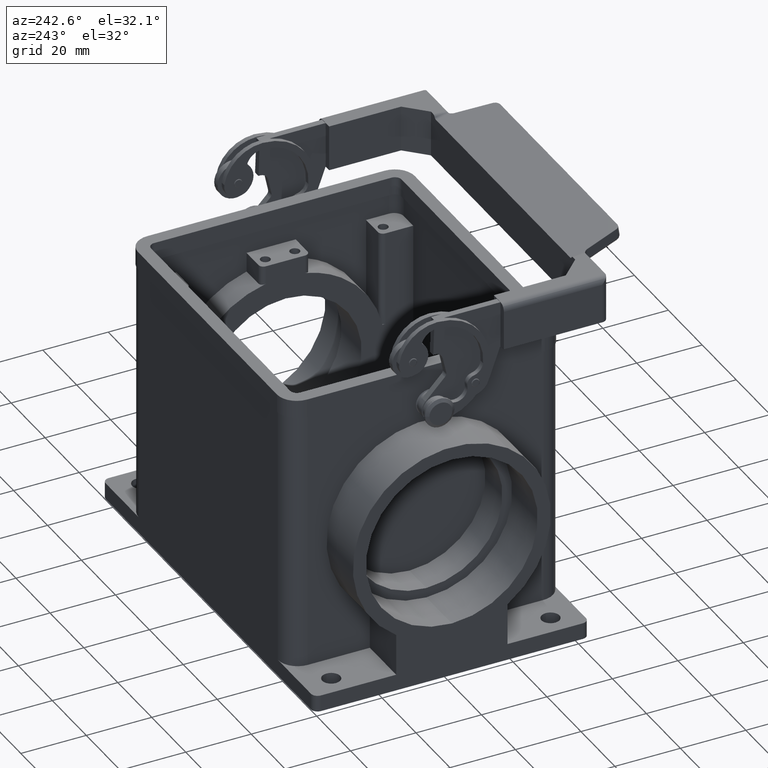
[diagram: clean part render]
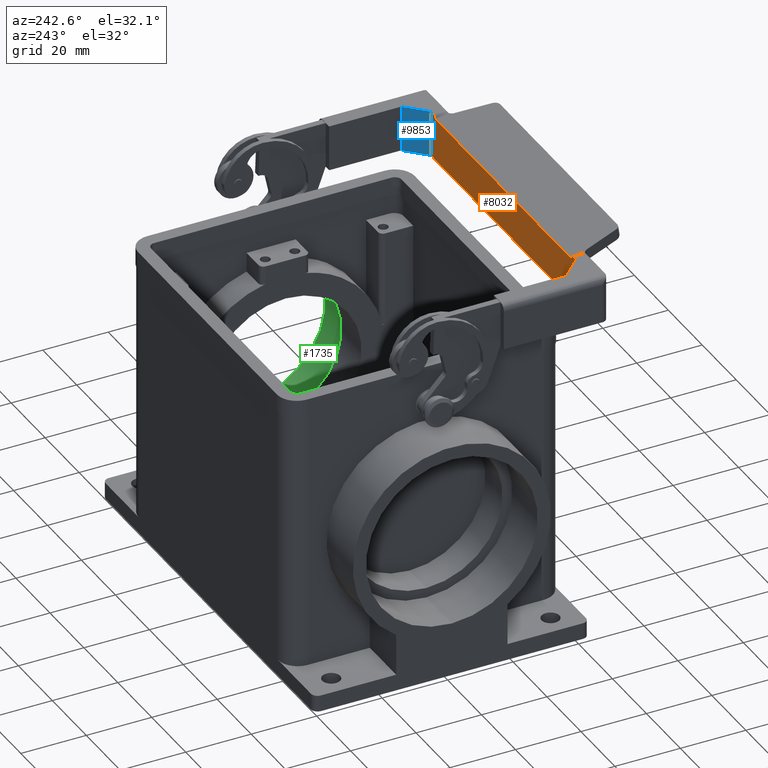
[diagram: same view with three faces highlighted in distinct colors, each labeled with its STEP entity id]
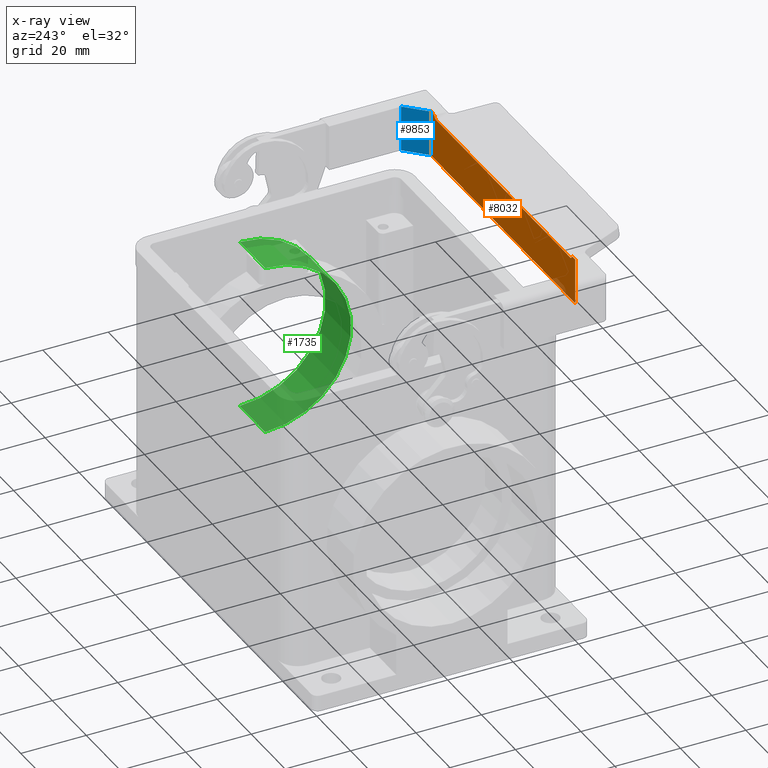
[diagram: x-ray of the same camera — body ghosted, the three highlighted faces saturated]
A machine part, auxiliary view with three faces highlighted in distinct colors.
The next image is the same camera in x-ray (body ghosted, the three faces saturated) — at least one of them is partly hidden behind the body in this view.
Their STEP definitions:

[orange] entity #8032 — the highlighted face is a freeform B-spline surface patch.
#7191=CARTESIAN_POINT('',(40.361560227985684,-48.050000000000011,52.499939828503017));
#7192=VERTEX_POINT('',#7191);
#7210=CARTESIAN_POINT('',(39.500115408826900,-48.050000003168250,52.000000000558650));
#7211=VERTEX_POINT('',#7210);
#7212=CARTESIAN_POINT('',(40.361560227985684,-48.050000000000011,52.499939828503017));
#7213=CARTESIAN_POINT('',(40.314407092082220,-48.050000000000011,52.418679517038271));
#7214=CARTESIAN_POINT('',(40.256156698689821,-48.049999999997155,52.344163093225035));
#7215=CARTESIAN_POINT('',(40.093467195348580,-48.049999999997155,52.187420787721017));
#7216=CARTESIAN_POINT('',(39.981739528251182,-48.049999999999272,52.115617820340880));
#7217=CARTESIAN_POINT('',(39.744715238836235,-48.049999999999272,52.022999224128156));
#7218=CARTESIAN_POINT('',(39.623003539887996,-48.050000000000004,52.0));
#7219=CARTESIAN_POINT('',(39.500115408843875,-48.050000000000004,52.0));
#7220=B_SPLINE_CURVE_WITH_KNOTS('',3,(#7212,#7213,#7214,#7215,#7216,#7217,#7218,#7219),.UNSPECIFIED.,.F.,.U.,(4,2,2,4),(0.052602964427469,0.080903267851623,0.120399781356389,0.157290182655820),.UNSPECIFIED.);
#7221=EDGE_CURVE('',#7211,#7192,#7220,.F.);
#7333=CARTESIAN_POINT('',(41.232172577320149,-48.049999999999997,53.000000000000007));
#7334=VERTEX_POINT('',#7333);
#7352=CARTESIAN_POINT('',(41.232172577320149,-48.050000000000004,53.000000000000007));
#7353=CARTESIAN_POINT('',(41.101124847243476,-48.050000000000004,53.000000000000007));
#7354=CARTESIAN_POINT('',(40.971285304000212,-48.049999999999919,52.974510148811845));
#7355=CARTESIAN_POINT('',(40.747813539045509,-48.049999999999919,52.883134780876055));
#7356=CARTESIAN_POINT('',(40.653180753621825,-48.049999999999990,52.824854547167703));
#7357=CARTESIAN_POINT('',(40.487113480392821,-48.049999999999990,52.680204351838931));
#7358=CARTESIAN_POINT('',(40.416690092124156,-48.050000000000004,52.594946657742810));
#7359=CARTESIAN_POINT('',(40.361560227985677,-48.050000000000004,52.499939828503003));
#7360=B_SPLINE_CURVE_WITH_KNOTS('',3,(#7352,#7353,#7354,#7355,#7356,#7357,#7358,#7359),.UNSPECIFIED.,.F.,.U.,(4,2,2,4),(0.0,0.039314319023001,0.072431729905374,0.105388989060189),.UNSPECIFIED.);
#7361=EDGE_CURVE('',#7334,#7192,#7360,.T.);
#7398=CARTESIAN_POINT('',(42.500000000000000,-48.050000000000004,53.000000000000007));
#7399=VERTEX_POINT('',#7398);
#7406=CARTESIAN_POINT('',(42.500000000000000,-48.050000000000004,53.000000000000007));
#7407=DIRECTION('',(-1.0,0.0,0.0));
#7408=VECTOR('',#7407,1.267827422679851);
#7409=LINE('',#7406,#7408);
#7410=EDGE_CURVE('',#7399,#7334,#7409,.T.);
#7920=CARTESIAN_POINT('',(-40.361560227985684,-48.050000000000011,52.499939828503017));
#7921=VERTEX_POINT('',#7920);
#7939=CARTESIAN_POINT('',(-41.232172577320142,-48.050000000000026,53.000000000000007));
#7940=VERTEX_POINT('',#7939);
#7941=CARTESIAN_POINT('',(-40.361560227985677,-48.050000000000026,52.499939828503017));
#7942=CARTESIAN_POINT('',(-40.426951723056924,-48.050000000000026,52.612630811930146));
#7943=CARTESIAN_POINT('',(-40.513759861060976,-48.050000000000011,52.711435190928704));
#7944=CARTESIAN_POINT('',(-40.704277801393772,-48.050000000000011,52.858071887795369));
#7945=CARTESIAN_POINT('',(-40.801997983177614,-48.050000000000011,52.910439093288851));
#7946=CARTESIAN_POINT('',(-41.011162370497345,-48.050000000000011,52.981755231119976));
#7947=CARTESIAN_POINT('',(-41.121302325008536,-48.049999999999997,53.0));
#7948=CARTESIAN_POINT('',(-41.232172577320149,-48.049999999999997,53.0));
#7949=B_SPLINE_CURVE_WITH_KNOTS('',3,(#7941,#7942,#7943,#7944,#7945,#7946,#7947,#7948),.UNSPECIFIED.,.F.,.U.,(4,2,2,4),(0.0,0.039086794235502,0.072118588781698,0.105374956727841),.UNSPECIFIED.);
#7950=EDGE_CURVE('',#7921,#7940,#7949,.T.);
#7972=CARTESIAN_POINT('',(-42.499999999999993,-48.050000000000004,39.0));
#7973=CARTESIAN_POINT('',(-42.499999999999993,-48.050000000000004,53.000000387195335));
#7974=CARTESIAN_POINT('',(42.500000000000007,-48.050000000000004,39.0));
#7975=CARTESIAN_POINT('',(42.500000000000007,-48.050000000000004,53.000000387195342));
#7976=B_SPLINE_SURFACE_WITH_KNOTS('',1,1,((#7972,#7974),(#7973,#7975)),.UNSPECIFIED.,.F.,.F.,.U.,(2,2),(2,2),(0.0,14.000000387195335),(0.0,85.0),.UNSPECIFIED.);
#7977=ORIENTED_EDGE('',*,*,#7950,.F.);
#7978=CARTESIAN_POINT('',(-39.500115408824747,-48.050000003569799,52.000000000629441));
#7979=VERTEX_POINT('',#7978);
#7980=CARTESIAN_POINT('',(-39.500115408843875,-48.049999999999997,51.999999999999993));
#7981=CARTESIAN_POINT('',(-39.628297697831698,-48.049999999999997,51.999999999999993));
#7982=CARTESIAN_POINT('',(-39.755144809877883,-48.050000000000011,52.025023145515732));
#7983=CARTESIAN_POINT('',(-39.992863264927742,-48.050000000000011,52.122292077363454));
#7984=CARTESIAN_POINT('',(-40.101257557667779,-48.050000000000246,52.193710430774161));
#7985=CARTESIAN_POINT('',(-40.259054849162140,-48.050000000000246,52.347882602553270));
#7986=CARTESIAN_POINT('',(-40.315583885228996,-48.050000000000011,52.420707517420524));
#7987=CARTESIAN_POINT('',(-40.361560227985684,-48.050000000000011,52.499939828503017));
#7988=B_SPLINE_CURVE_WITH_KNOTS('',3,(#7980,#7981,#7982,#7983,#7984,#7985,#7986,#7987),.UNSPECIFIED.,.F.,.U.,(4,2,2,4),(0.0,0.038454686696347,0.077047642081161,0.104617594183743),.UNSPECIFIED.);
#7989=EDGE_CURVE('',#7979,#7921,#7988,.T.);
#7990=ORIENTED_EDGE('',*,*,#7989,.F.);
#7991=CARTESIAN_POINT('',(39.500115408826900,-48.050000003168250,52.000000000558650));
#7992=DIRECTION('',(-1.0,-5.082884E-012,8.960907E-013));
#7993=VECTOR('',#7992,79.000230817651641);
#7994=LINE('',#7991,#7993);
#7995=EDGE_CURVE('',#7211,#7979,#7994,.T.);
#7996=ORIENTED_EDGE('',*,*,#7995,.F.);
#7997=ORIENTED_EDGE('',*,*,#7221,.T.);
#7998=ORIENTED_EDGE('',*,*,#7361,.F.);
#7999=ORIENTED_EDGE('',*,*,#7410,.F.);
#8000=CARTESIAN_POINT('',(42.500000000000000,-48.050000000000004,39.0));
#8001=VERTEX_POINT('',#8000);
#8002=CARTESIAN_POINT('',(42.500000000000000,-48.050000000000004,39.0));
#8003=DIRECTION('',(0.0,0.0,1.0));
#8004=VECTOR('',#8003,14.000000000000007);
#8005=LINE('',#8002,#8004);
#8006=EDGE_CURVE('',#8001,#7399,#8005,.T.);
#8007=ORIENTED_EDGE('',*,*,#8006,.F.);
#8008=CARTESIAN_POINT('',(-42.500000000000000,-48.050000000000004,39.0));
#8009=VERTEX_POINT('',#8008);
#8010=CARTESIAN_POINT('',(42.500000000000000,-48.050000000000004,39.0));
#8011=DIRECTION('',(-1.0,0.0,0.0));
#8012=VECTOR('',#8011,85.0);
#8013=LINE('',#8010,#8012);
#8014=EDGE_CURVE('',#8001,#8009,#8013,.T.);
#8015=ORIENTED_EDGE('',*,*,#8014,.T.);
#8016=CARTESIAN_POINT('',(-42.500000000000000,-48.050000000000004,53.000000000000007));
#8017=VERTEX_POINT('',#8016);
#8018=CARTESIAN_POINT('',(-42.500000000000000,-48.050000000000004,39.0));
#8019=DIRECTION('',(0.0,0.0,1.0));
#8020=VECTOR('',#8019,14.000000000000007);
#8021=LINE('',#8018,#8020);
#8022=EDGE_CURVE('',#8009,#8017,#8021,.T.);
#8023=ORIENTED_EDGE('',*,*,#8022,.T.);
#8024=CARTESIAN_POINT('',(-42.500000000000000,-48.050000000000004,53.000000000000007));
#8025=DIRECTION('',(1.0,0.0,0.0));
#8026=VECTOR('',#8025,1.267827422679858);
#8027=LINE('',#8024,#8026);
#8028=EDGE_CURVE('',#8017,#7940,#8027,.T.);
#8029=ORIENTED_EDGE('',*,*,#8028,.T.);
#8030=EDGE_LOOP('',(#7977,#7990,#7996,#7997,#7998,#7999,#8007,#8015,#8023,#8029));
#8031=FACE_OUTER_BOUND('',#8030,.T.);
#8032=ADVANCED_FACE('',(#8031),#7976,.T.);

[blue] entity #9853 — the highlighted face is a freeform B-spline surface patch.
#7390=CARTESIAN_POINT('',(48.500000000000014,-42.049999999999997,53.000000000000007));
#7391=VERTEX_POINT('',#7390);
#7398=CARTESIAN_POINT('',(42.500000000000000,-48.050000000000004,53.000000000000007));
#7399=VERTEX_POINT('',#7398);
#7400=CARTESIAN_POINT('',(48.500000000000014,-42.049999999999997,53.000000000000007));
#7401=DIRECTION('',(-0.707106781186548,-0.707106781186547,0.0));
#7402=VECTOR('',#7401,8.485281374238586);
#7403=LINE('',#7400,#7402);
#7404=EDGE_CURVE('',#7391,#7399,#7403,.T.);
#8000=CARTESIAN_POINT('',(42.500000000000000,-48.050000000000004,39.0));
#8001=VERTEX_POINT('',#8000);
#8002=CARTESIAN_POINT('',(42.500000000000000,-48.050000000000004,39.0));
#8003=DIRECTION('',(0.0,0.0,1.0));
#8004=VECTOR('',#8003,14.000000000000007);
#8005=LINE('',#8002,#8004);
#8006=EDGE_CURVE('',#8001,#7399,#8005,.T.);
#9812=CARTESIAN_POINT('',(48.500000000000014,-42.049999999999997,39.0));
#9813=VERTEX_POINT('',#9812);
#9814=CARTESIAN_POINT('',(42.500000000000000,-48.050000000000004,39.0));
#9815=DIRECTION('',(0.707106781186548,0.707106781186547,0.0));
#9816=VECTOR('',#9815,8.485281374238586);
#9817=LINE('',#9814,#9816);
#9818=EDGE_CURVE('',#8001,#9813,#9817,.T.);
#9837=CARTESIAN_POINT('',(48.500000000000014,-42.049999999999997,53.000000000000007));
#9838=CARTESIAN_POINT('',(48.500000000000014,-42.049999999999997,39.0));
#9839=CARTESIAN_POINT('',(42.500000000000000,-48.050000000000004,53.000000000000007));
#9840=CARTESIAN_POINT('',(42.500000000000000,-48.049999999999997,38.999999999999993));
#9841=B_SPLINE_SURFACE_WITH_KNOTS('',1,1,((#9837,#9839),(#9838,#9840)),.UNSPECIFIED.,.F.,.F.,.U.,(2,2),(2,2),(0.0,14.000000000000007),(0.0,8.485281374238586),.UNSPECIFIED.);
#9842=ORIENTED_EDGE('',*,*,#9818,.F.);
#9843=ORIENTED_EDGE('',*,*,#8006,.T.);
#9844=ORIENTED_EDGE('',*,*,#7404,.F.);
#9845=CARTESIAN_POINT('',(48.500000000000014,-42.049999999999997,39.0));
#9846=DIRECTION('',(0.0,0.0,1.0));
#9847=VECTOR('',#9846,14.000000000000007);
#9848=LINE('',#9845,#9847);
#9849=EDGE_CURVE('',#9813,#7391,#9848,.T.);
#9850=ORIENTED_EDGE('',*,*,#9849,.F.);
#9851=EDGE_LOOP('',(#9842,#9843,#9844,#9850));
#9852=FACE_OUTER_BOUND('',#9851,.T.);
#9853=ADVANCED_FACE('',(#9852),#9841,.T.);

[green] entity #1735 — the highlighted cylindrical surface (partial cylindrical patch) has radius 26.24 mm, axis along (1, 0, 0).
#1694=CARTESIAN_POINT('',(55.0,0.0,-12.259999999999994));
#1695=DIRECTION('',(1.0,0.0,0.0));
#1696=DIRECTION('',(1.553563E-013,0.0,1.0));
#1697=AXIS2_PLACEMENT_3D('',#1694,#1695,#1696);
#1698=CYLINDRICAL_SURFACE('',#1697,26.240000000000006);
#1699=CARTESIAN_POINT('',(62.500000000000000,0.0,13.980000000000008));
#1700=VERTEX_POINT('',#1699);
#1701=CARTESIAN_POINT('',(47.500000000000000,0.0,13.980000000000011));
#1702=VERTEX_POINT('',#1701);
#1703=CARTESIAN_POINT('',(62.500000000000000,0.0,13.980000000000008));
#1704=DIRECTION('',(-1.0,0.0,0.0));
#1705=VECTOR('',#1704,15.0);
#1706=LINE('',#1703,#1705);
#1707=EDGE_CURVE('',#1700,#1702,#1706,.T.);
#1708=ORIENTED_EDGE('',*,*,#1707,.F.);
#1709=CARTESIAN_POINT('',(62.499999999999986,-3.213367E-015,-38.500000000000000));
#1710=VERTEX_POINT('',#1709);
#1711=CARTESIAN_POINT('',(62.499999999999986,0.0,-12.259999999999994));
#1712=DIRECTION('',(-1.0,0.0,1.553563E-013));
#1713=DIRECTION('',(1.553563E-013,0.0,1.0));
#1714=AXIS2_PLACEMENT_3D('',#1711,#1712,#1713);
#1715=CIRCLE('',#1714,26.240000000000006);
#1716=EDGE_CURVE('',#1710,#1700,#1715,.T.);
#1717=ORIENTED_EDGE('',*,*,#1716,.F.);
#1718=CARTESIAN_POINT('',(47.500000000000000,-3.213367E-015,-38.500000000000000));
#1719=VERTEX_POINT('',#1718);
#1720=CARTESIAN_POINT('',(47.500000000000000,-3.213367E-015,-38.500000000000000));
#1721=DIRECTION('',(1.0,0.0,0.0));
#1722=VECTOR('',#1721,14.999999999999986);
#1723=LINE('',#1720,#1722);
#1724=EDGE_CURVE('',#1719,#1710,#1723,.T.);
#1725=ORIENTED_EDGE('',*,*,#1724,.F.);
#1726=CARTESIAN_POINT('',(47.500000000000000,0.0,-12.259999999999994));
#1727=DIRECTION('',(1.0,0.0,-1.553563E-013));
#1728=DIRECTION('',(1.553563E-013,0.0,1.0));
#1729=AXIS2_PLACEMENT_3D('',#1726,#1727,#1728);
#1730=CIRCLE('',#1729,26.240000000000006);
#1731=EDGE_CURVE('',#1702,#1719,#1730,.T.);
#1732=ORIENTED_EDGE('',*,*,#1731,.F.);
#1733=EDGE_LOOP('',(#1708,#1717,#1725,#1732));
#1734=FACE_OUTER_BOUND('',#1733,.T.);
#1735=ADVANCED_FACE('',(#1734),#1698,.F.);